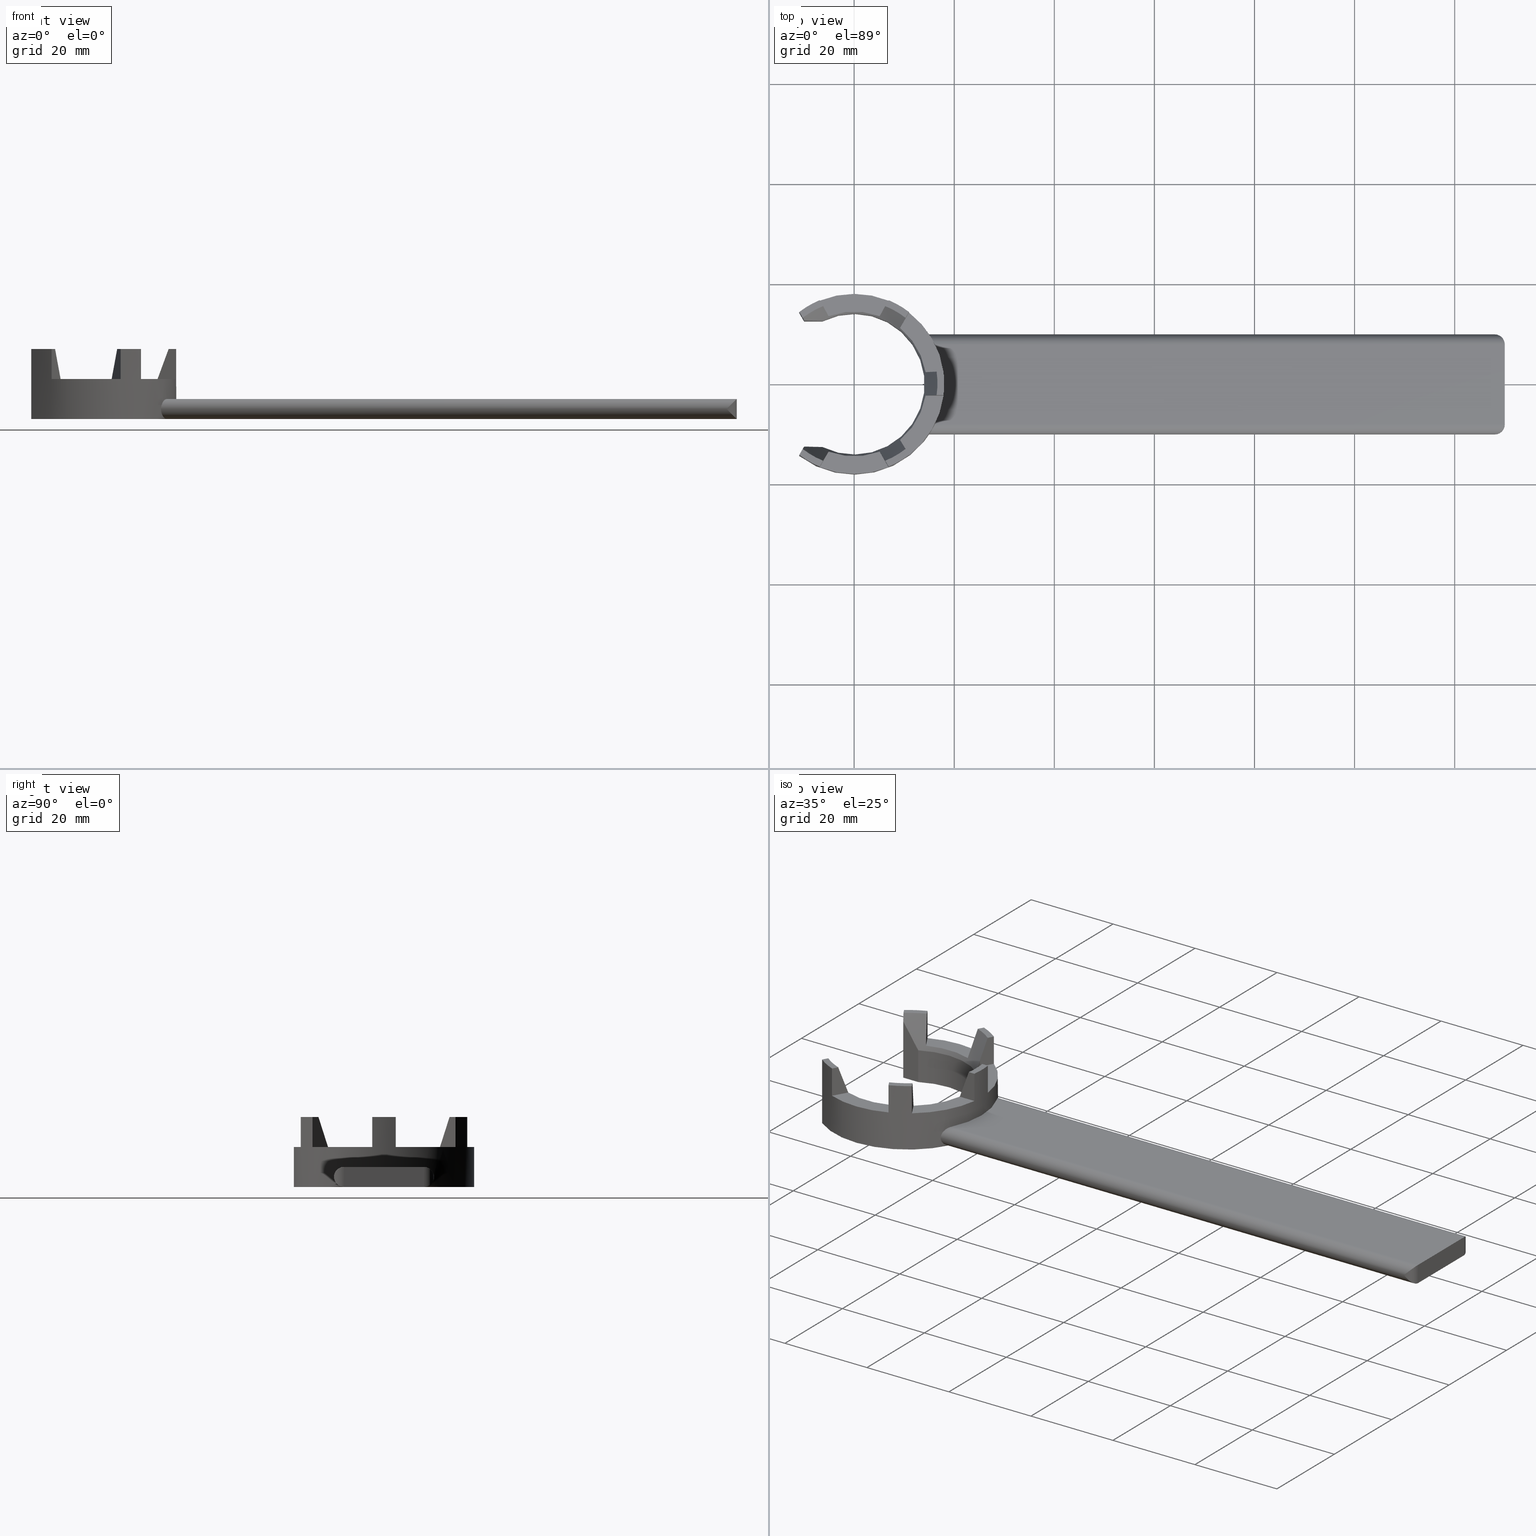
[diagram: canonical four-view strip — front | top / right | iso, engineering-drawing reading convention]
A machine part, canonical four-view strip (front | top / right | iso — engineering-drawing reading convention). The complete STEP part file that produces these views, byte-faithful:
ISO-10303-21;
HEADER;
/* Generated by software containing ST-Developer
 * from STEP Tools, Inc. (www.steptools.com) 
 */

FILE_DESCRIPTION(
/* description */ ('Alibre Inc.'),
/* implementation_level */ '2;1');

FILE_NAME(
/* name */ 'export-CDDEE885-3232-4505-8EFA-BA360E4EB840',
/* time_stamp */ '2019-05-28T17:25:42+02:00',
/* author */ (''),
/* organization */ (''),
/* preprocessor_version */ 'ST-DEVELOPER v17',
/* originating_system */ 'Alibre',
/* authorisation */ '');

FILE_SCHEMA (('AUTOMOTIVE_DESIGN'));
ENDSEC;

DATA;
#10=STYLED_ITEM('NAME_0',(#55),#637);
#11=STYLED_ITEM('NAME_0',(#56),#599);
#12=STYLED_ITEM('NAME_0',(#56),#600);
#13=STYLED_ITEM('NAME_0',(#56),#601);
#14=STYLED_ITEM('NAME_0',(#56),#602);
#15=STYLED_ITEM('NAME_0',(#56),#603);
#16=STYLED_ITEM('NAME_0',(#56),#604);
#17=STYLED_ITEM('NAME_0',(#56),#605);
#18=STYLED_ITEM('NAME_0',(#56),#606);
#19=STYLED_ITEM('NAME_0',(#56),#607);
#20=STYLED_ITEM('NAME_0',(#56),#608);
#21=STYLED_ITEM('NAME_0',(#56),#609);
#22=STYLED_ITEM('NAME_0',(#56),#610);
#23=STYLED_ITEM('NAME_0',(#56),#611);
#24=STYLED_ITEM('NAME_0',(#56),#612);
#25=STYLED_ITEM('NAME_0',(#56),#613);
#26=STYLED_ITEM('NAME_0',(#56),#614);
#27=STYLED_ITEM('NAME_0',(#56),#615);
#28=STYLED_ITEM('NAME_0',(#56),#616);
#29=STYLED_ITEM('NAME_0',(#56),#617);
#30=STYLED_ITEM('NAME_0',(#56),#618);
#31=STYLED_ITEM('NAME_0',(#56),#619);
#32=STYLED_ITEM('NAME_0',(#56),#620);
#33=STYLED_ITEM('NAME_0',(#56),#621);
#34=STYLED_ITEM('NAME_0',(#56),#622);
#35=STYLED_ITEM('NAME_0',(#56),#623);
#36=STYLED_ITEM('NAME_0',(#56),#624);
#37=STYLED_ITEM('NAME_0',(#56),#625);
#38=STYLED_ITEM('NAME_0',(#56),#626);
#39=STYLED_ITEM('NAME_0',(#56),#627);
#40=STYLED_ITEM('NAME_0',(#56),#628);
#41=STYLED_ITEM('NAME_0',(#56),#629);
#42=MECHANICAL_DESIGN_GEOMETRIC_PRESENTATION_REPRESENTATION('NAME_0',(#10,
#11,#12,#13,#14,#15,#16,#17,#18,#19,#20,#21,#22,#23,#24,#25,#26,#27,#28,
#29,#30,#31,#32,#33,#34,#35,#36,#37,#38,#39,#40,#41),#71);
#43=COLOUR_RGB('',0.882352941176471,0.882352941176471,0.882352941176471);
#44=COLOUR_RGB('',0.752941176470588,0.752941176470588,0.752941176470588);
#45=FILL_AREA_STYLE_COLOUR('NAME_0',#43);
#46=FILL_AREA_STYLE_COLOUR('NAME_0',#44);
#47=FILL_AREA_STYLE('NAME_0',(#45));
#48=FILL_AREA_STYLE('NAME_0',(#46));
#49=SURFACE_STYLE_FILL_AREA(#47);
#50=SURFACE_STYLE_FILL_AREA(#48);
#51=SURFACE_SIDE_STYLE('NAME_0',(#49));
#52=SURFACE_SIDE_STYLE('NAME_0',(#50));
#53=SURFACE_STYLE_USAGE(.POSITIVE.,#51);
#54=SURFACE_STYLE_USAGE(.POSITIVE.,#52);
#55=PRESENTATION_STYLE_ASSIGNMENT((#53));
#56=PRESENTATION_STYLE_ASSIGNMENT((#54));
#57=PRODUCT_DEFINITION_CONTEXT('part definition',#64,'design');
#58=SHAPE_DEFINITION_REPRESENTATION(#59,#1131);
#59=PRODUCT_DEFINITION_SHAPE('PRODUCT_VERSION_ID',
'PRODUCT_VERSION_DESCR',#60);
#60=PRODUCT_DEFINITION('PRODUCT_VERSION_ID','PRODUCT_VERSION_DESCR',#61,
#57);
#61=PRODUCT_DEFINITION_FORMATION_WITH_SPECIFIED_SOURCE(
'PRODUCT_VERSION_ID','PRODUCT_VERSION_DESCR',#66,.MADE.);
#62=PRODUCT_RELATED_PRODUCT_CATEGORY('part','part',(#66));
#63=APPLICATION_PROTOCOL_DEFINITION('Draft International Standard',
'automotive_design',1994,#64);
#64=APPLICATION_CONTEXT('automotive_Design');
#65=PRODUCT_CONTEXT('3D Mechanical Parts',#64,'mechanical');
#66=PRODUCT('','4998 Wrench for ERM25 Nut','',(#65));
#67=(
LENGTH_UNIT()
NAMED_UNIT(*)
SI_UNIT(.MILLI.,.METRE.)
);
#68=(
NAMED_UNIT(*)
PLANE_ANGLE_UNIT()
SI_UNIT($,.RADIAN.)
);
#69=(
NAMED_UNIT(*)
SI_UNIT($,.STERADIAN.)
SOLID_ANGLE_UNIT()
);
#70=UNCERTAINTY_MEASURE_WITH_UNIT(LENGTH_MEASURE(1.E-6),#67,
'DISTANCE_ACCURACY_VALUE',
'Maximum model space distance between geometric entities at asserted c
onnectivities');
#71=(
GEOMETRIC_REPRESENTATION_CONTEXT(3)
GLOBAL_UNCERTAINTY_ASSIGNED_CONTEXT((#70))
GLOBAL_UNIT_ASSIGNED_CONTEXT((#69,#68,#67))
REPRESENTATION_CONTEXT('ID1','3D')
);
#72=PLANE('',#1087);
#73=PLANE('',#1088);
#74=PLANE('',#1090);
#75=PLANE('',#1094);
#76=PLANE('',#1095);
#77=PLANE('',#1096);
#78=PLANE('',#1097);
#79=PLANE('',#1099);
#80=PLANE('',#1100);
#81=PLANE('',#1101);
#82=PLANE('',#1103);
#83=PLANE('',#1104);
#84=PLANE('',#1105);
#85=PLANE('',#1107);
#86=PLANE('',#1108);
#87=PLANE('',#1113);
#88=PLANE('',#1117);
#89=PLANE('',#1119);
#90=PLANE('',#1120);
#91=PLANE('',#1121);
#92=PLANE('',#1127);
#93=PLANE('',#1128);
#94=PLANE('',#1129);
#95=PLANE('',#1130);
#96=CIRCLE('',#1077,14.1);
#97=CIRCLE('',#1078,16.65);
#98=CIRCLE('',#1079,14.4661785944028);
#99=CIRCLE('',#1080,16.65);
#100=CIRCLE('',#1081,14.4661785944028);
#101=CIRCLE('',#1082,16.65);
#102=CIRCLE('',#1083,14.4661785944028);
#103=CIRCLE('',#1084,16.65);
#104=CIRCLE('',#1085,14.4661785944028);
#105=CIRCLE('',#1086,16.65);
#106=CIRCLE('',#1089,18.);
#107=CIRCLE('',#1091,18.);
#108=CIRCLE('',#1092,14.1);
#109=CIRCLE('',#1093,18.);
#110=CIRCLE('',#1098,18.);
#111=CIRCLE('',#1102,18.);
#112=CIRCLE('',#1106,18.);
#113=CIRCLE('',#1114,18.);
#114=CIRCLE('',#1118,18.);
#115=CIRCLE('',#1122,18.);
#116=CIRCLE('',#1124,18.);
#117=CIRCLE('',#1125,18.);
#118=CIRCLE('',#1126,18.);
#119=(
BOUNDED_CURVE()
B_SPLINE_CURVE(2,(#838,#839,#840),.UNSPECIFIED.,.F.,.U.)
B_SPLINE_CURVE_WITH_KNOTS((3,3),(1.16521965065809,7.5947729396406),
 .UNSPECIFIED.)
CURVE()
GEOMETRIC_REPRESENTATION_ITEM()
RATIONAL_B_SPLINE_CURVE((1.00358761468134,1.01213205879889,1.0057386203851))
REPRESENTATION_ITEM('')
);
#120=(
BOUNDED_CURVE()
B_SPLINE_CURVE(2,(#845,#846,#847),.UNSPECIFIED.,.F.,.U.)
B_SPLINE_CURVE_WITH_KNOTS((3,3),(2.09105406984365,8.52060735882623),
 .UNSPECIFIED.)
CURVE()
GEOMETRIC_REPRESENTATION_ITEM()
RATIONAL_B_SPLINE_CURVE((1.0057386203851,1.01213205879887,1.00358761468133))
REPRESENTATION_ITEM('')
);
#121=(
BOUNDED_CURVE()
B_SPLINE_CURVE(2,(#849,#850,#851),.UNSPECIFIED.,.F.,.U.)
B_SPLINE_CURVE_WITH_KNOTS((3,3),(1.30238798375389,2.97414450343107),
 .UNSPECIFIED.)
CURVE()
GEOMETRIC_REPRESENTATION_ITEM()
RATIONAL_B_SPLINE_CURVE((1.00044412135791,1.00060787198154,1.00046024894192))
REPRESENTATION_ITEM('')
);
#122=(
BOUNDED_CURVE()
B_SPLINE_CURVE(2,(#855,#856,#857),.UNSPECIFIED.,.F.,.U.)
B_SPLINE_CURVE_WITH_KNOTS((3,3),(1.23235449962897,7.61757274697505),
 .UNSPECIFIED.)
CURVE()
GEOMETRIC_REPRESENTATION_ITEM()
RATIONAL_B_SPLINE_CURVE((1.00120263872427,1.00382930391001,1.00138905098697))
REPRESENTATION_ITEM('')
);
#123=(
BOUNDED_CURVE()
B_SPLINE_CURVE(2,(#861,#862,#863),.UNSPECIFIED.,.F.,.U.)
B_SPLINE_CURVE_WITH_KNOTS((3,3),(1.46726711424918,7.85248536160198),
 .UNSPECIFIED.)
CURVE()
GEOMETRIC_REPRESENTATION_ITEM()
RATIONAL_B_SPLINE_CURVE((1.00138905098491,1.00382930390449,1.00120263872258))
REPRESENTATION_ITEM('')
);
#124=(
BOUNDED_CURVE()
B_SPLINE_CURVE(2,(#867,#868,#869),.UNSPECIFIED.,.F.,.U.)
B_SPLINE_CURVE_WITH_KNOTS((3,3),(1.46726711426512,7.85248536161977),
 .UNSPECIFIED.)
CURVE()
GEOMETRIC_REPRESENTATION_ITEM()
RATIONAL_B_SPLINE_CURVE((1.00138905098606,1.00382930390763,1.00120263872355))
REPRESENTATION_ITEM('')
);
#125=(
BOUNDED_CURVE()
B_SPLINE_CURVE(2,(#873,#874,#875),.UNSPECIFIED.,.F.,.U.)
B_SPLINE_CURVE_WITH_KNOTS((3,3),(1.23235449952249,7.61757274687085),
 .UNSPECIFIED.)
CURVE()
GEOMETRIC_REPRESENTATION_ITEM()
RATIONAL_B_SPLINE_CURVE((1.00120263872895,1.0038293039252,1.00138905099256))
REPRESENTATION_ITEM('')
);
#126=(
BOUNDED_CURVE()
B_SPLINE_CURVE(2,(#879,#880,#881),.UNSPECIFIED.,.F.,.U.)
B_SPLINE_CURVE_WITH_KNOTS((3,3),(1.23235449955722,7.61757274690934),
 .UNSPECIFIED.)
CURVE()
GEOMETRIC_REPRESENTATION_ITEM()
RATIONAL_B_SPLINE_CURVE((1.00120263872799,1.00382930392206,1.00138905099139))
REPRESENTATION_ITEM('')
);
#127=(
BOUNDED_CURVE()
B_SPLINE_CURVE(2,(#885,#886,#887),.UNSPECIFIED.,.F.,.U.)
B_SPLINE_CURVE_WITH_KNOTS((3,3),(1.46726711425112,7.85248536160041),
 .UNSPECIFIED.)
CURVE()
GEOMETRIC_REPRESENTATION_ITEM()
RATIONAL_B_SPLINE_CURVE((1.00138905098433,1.00382930390287,1.00120263872207))
REPRESENTATION_ITEM('')
);
#128=(
BOUNDED_CURVE()
B_SPLINE_CURVE(2,(#891,#892,#893),.UNSPECIFIED.,.F.,.U.)
B_SPLINE_CURVE_WITH_KNOTS((3,3),(1.23235449967473,7.61757274701534),
 .UNSPECIFIED.)
CURVE()
GEOMETRIC_REPRESENTATION_ITEM()
RATIONAL_B_SPLINE_CURVE((1.00120263872169,1.00382930390168,1.00138905098392))
REPRESENTATION_ITEM('')
);
#129=(
BOUNDED_CURVE()
B_SPLINE_CURVE(2,(#897,#898,#899),.UNSPECIFIED.,.F.,.U.)
B_SPLINE_CURVE_WITH_KNOTS((3,3),(1.46726711426749,7.85248536160569),
 .UNSPECIFIED.)
CURVE()
GEOMETRIC_REPRESENTATION_ITEM()
RATIONAL_B_SPLINE_CURVE((1.00138905098298,1.00382930389911,1.00120263872089))
REPRESENTATION_ITEM('')
);
#130=(
BOUNDED_CURVE()
B_SPLINE_CURVE(2,(#903,#904,#905),.UNSPECIFIED.,.F.,.U.)
B_SPLINE_CURVE_WITH_KNOTS((3,3),(1.38897653224902,3.06073305192669),
 .UNSPECIFIED.)
CURVE()
GEOMETRIC_REPRESENTATION_ITEM()
RATIONAL_B_SPLINE_CURVE((1.00046024891826,1.00060787195043,1.00044412133529))
REPRESENTATION_ITEM('')
);
#131=CONICAL_SURFACE('',#1076,16.65,0.349065850398866);
#132=B_SPLINE_CURVE_WITH_KNOTS('',3,(#787,#788,#789,#790,#791,#792,#793,
#794,#795,#796,#797,#798,#799,#800,#801,#802,#803,#804,#805,#806,#807,#808,
#809,#810,#811,#812,#813,#814,#815,#816,#817,#818,#819,#820,#821,#822,#823,
#824,#825,#826,#827,#828,#829,#830,#831,#832,#833,#834,#835,#836),
 .UNSPECIFIED.,.F.,.U.,(4,2,2,2,2,2,2,2,2,2,2,2,2,2,2,2,2,2,2,2,2,2,2,2,
4),(1.49623802577544,1.91003279942263,2.32382757306982,2.73762234671702,
3.15141712036421,3.58591533414772,4.02041354793122,4.45491176171473,4.88940997549823,
5.26623800093833,5.64306602637843,6.01989405181852,6.39672207725862,6.77355010269872,
7.15037812813881,7.52720615357891,7.90403417901901,8.33853239280251,8.77303060658602,
9.20752882036953,9.64202703415303,10.0558218078002,10.4696165814474,10.8834113550946,
11.2972061287418),.UNSPECIFIED.);
#133=B_SPLINE_CURVE_WITH_KNOTS('',3,(#995,#996,#997,#998,#999,#1000,#1001,
#1002,#1003,#1004,#1005,#1006,#1007,#1008,#1009,#1010,#1011,#1012,#1013,
#1014,#1015,#1016,#1017,#1018,#1019,#1020,#1021,#1022,#1023,#1024,#1025,
#1026,#1027,#1028,#1029,#1030,#1031,#1032,#1033,#1034,#1035,#1036,#1037,
#1038,#1039,#1040,#1041,#1042,#1043,#1044,#1045),.UNSPECIFIED.,.F.,.U.,
(4,2,2,2,2,2,2,2,2,2,2,2,3,2,2,2,2,2,2,2,2,2,2,2,4),(-4.90048405148318,
-4.48668927783599,-4.07289450418879,-3.6590997305416,-3.24530495689441,
-2.8108067431109,-2.3763085293274,-1.94181031554389,-1.50731210176039,-1.13048407632029,
-0.753656050880194,-0.376828025440098,0.,0.376828025440097,0.753656050880194,
1.13048407632029,1.50731210176039,1.94181031554389,2.3763085293274,2.8108067431109,
3.24530495689441,3.6590997305416,4.07289450418879,4.48668927783599,4.90048405148318),
 .UNSPECIFIED.);
#134=ELLIPSE('',#1074,2.82842712474619,2.);
#135=ELLIPSE('',#1075,2.82842712474619,2.);
#136=ELLIPSE('',#1111,2.82842712474619,2.);
#137=ELLIPSE('',#1112,2.82842712474619,2.);
#138=VERTEX_POINT('',#779);
#139=VERTEX_POINT('',#780);
#140=VERTEX_POINT('',#782);
#141=VERTEX_POINT('',#784);
#142=VERTEX_POINT('',#786);
#143=VERTEX_POINT('',#841);
#144=VERTEX_POINT('',#842);
#145=VERTEX_POINT('',#844);
#146=VERTEX_POINT('',#848);
#147=VERTEX_POINT('',#852);
#148=VERTEX_POINT('',#854);
#149=VERTEX_POINT('',#858);
#150=VERTEX_POINT('',#860);
#151=VERTEX_POINT('',#864);
#152=VERTEX_POINT('',#866);
#153=VERTEX_POINT('',#870);
#154=VERTEX_POINT('',#872);
#155=VERTEX_POINT('',#876);
#156=VERTEX_POINT('',#878);
#157=VERTEX_POINT('',#882);
#158=VERTEX_POINT('',#884);
#159=VERTEX_POINT('',#888);
#160=VERTEX_POINT('',#890);
#161=VERTEX_POINT('',#894);
#162=VERTEX_POINT('',#896);
#163=VERTEX_POINT('',#900);
#164=VERTEX_POINT('',#902);
#165=VERTEX_POINT('',#908);
#166=VERTEX_POINT('',#911);
#167=VERTEX_POINT('',#915);
#168=VERTEX_POINT('',#917);
#169=VERTEX_POINT('',#921);
#170=VERTEX_POINT('',#923);
#171=VERTEX_POINT('',#925);
#172=VERTEX_POINT('',#927);
#173=VERTEX_POINT('',#929);
#174=VERTEX_POINT('',#931);
#175=VERTEX_POINT('',#933);
#176=VERTEX_POINT('',#940);
#177=VERTEX_POINT('',#942);
#178=VERTEX_POINT('',#946);
#179=VERTEX_POINT('',#948);
#180=VERTEX_POINT('',#952);
#181=VERTEX_POINT('',#954);
#182=VERTEX_POINT('',#960);
#183=VERTEX_POINT('',#964);
#184=VERTEX_POINT('',#966);
#185=VERTEX_POINT('',#970);
#186=VERTEX_POINT('',#974);
#187=VERTEX_POINT('',#978);
#188=VERTEX_POINT('',#980);
#189=VERTEX_POINT('',#984);
#190=VERTEX_POINT('',#988);
#191=VERTEX_POINT('',#994);
#192=VERTEX_POINT('',#1046);
#193=VERTEX_POINT('',#1060);
#194=VECTOR('',#642,1.);
#195=VECTOR('',#647,1.);
#196=VECTOR('',#671,1.);
#197=VECTOR('',#672,1.);
#198=VECTOR('',#673,1.);
#199=VECTOR('',#674,1.);
#200=VECTOR('',#676,0.999999999999999);
#201=VECTOR('',#677,0.999999999999999);
#202=VECTOR('',#683,0.999999999999999);
#203=VECTOR('',#684,1.);
#204=VECTOR('',#687,1.);
#205=VECTOR('',#688,1.);
#206=VECTOR('',#691,1.);
#207=VECTOR('',#693,1.);
#208=VECTOR('',#694,1.);
#209=VECTOR('',#696,1.);
#210=VECTOR('',#697,1.);
#211=VECTOR('',#698,1.);
#212=VECTOR('',#700,1.);
#213=VECTOR('',#701,1.);
#214=VECTOR('',#702,1.);
#215=VECTOR('',#704,0.999999999999999);
#216=VECTOR('',#707,1.);
#217=VECTOR('',#709,1.);
#218=VECTOR('',#711,1.);
#219=VECTOR('',#712,1.);
#220=VECTOR('',#714,1.);
#221=VECTOR('',#717,1.);
#222=VECTOR('',#719,1.);
#223=VECTOR('',#720,1.);
#224=VECTOR('',#722,1.);
#225=VECTOR('',#723,1.);
#226=VECTOR('',#725,1.);
#227=VECTOR('',#728,1.);
#228=VECTOR('',#730,1.);
#229=VECTOR('',#731,1.);
#230=VECTOR('',#733,1.);
#231=VECTOR('',#734,1.);
#232=VECTOR('',#737,1.);
#233=VECTOR('',#742,1.);
#234=VECTOR('',#756,1.);
#235=VECTOR('',#758,1.);
#236=VECTOR('',#759,1.);
#237=VECTOR('',#760,1.);
#238=LINE('',#778,#194);
#239=LINE('',#785,#195);
#240=LINE('',#907,#196);
#241=LINE('',#909,#197);
#242=LINE('',#910,#198);
#243=LINE('',#912,#199);
#244=LINE('',#914,#200);
#245=LINE('',#916,#201);
#246=LINE('',#922,#202);
#247=LINE('',#924,#203);
#248=LINE('',#928,#204);
#249=LINE('',#930,#205);
#250=LINE('',#934,#206);
#251=LINE('',#936,#207);
#252=LINE('',#937,#208);
#253=LINE('',#939,#209);
#254=LINE('',#941,#210);
#255=LINE('',#943,#211);
#256=LINE('',#945,#212);
#257=LINE('',#947,#213);
#258=LINE('',#949,#214);
#259=LINE('',#951,#215);
#260=LINE('',#955,#216);
#261=LINE('',#957,#217);
#262=LINE('',#959,#218);
#263=LINE('',#961,#219);
#264=LINE('',#963,#220);
#265=LINE('',#967,#221);
#266=LINE('',#969,#222);
#267=LINE('',#971,#223);
#268=LINE('',#973,#224);
#269=LINE('',#975,#225);
#270=LINE('',#977,#226);
#271=LINE('',#981,#227);
#272=LINE('',#983,#228);
#273=LINE('',#985,#229);
#274=LINE('',#987,#230);
#275=LINE('',#989,#231);
#276=LINE('',#991,#232);
#277=LINE('',#1047,#233);
#278=LINE('',#1056,#234);
#279=LINE('',#1058,#235);
#280=LINE('',#1059,#236);
#281=LINE('',#1061,#237);
#282=EDGE_CURVE('',#138,#139,#238,.F.);
#283=EDGE_CURVE('',#138,#140,#134,.F.);
#284=EDGE_CURVE('',#140,#141,#135,.F.);
#285=EDGE_CURVE('',#142,#141,#239,.T.);
#286=EDGE_CURVE('',#139,#142,#132,.T.);
#287=EDGE_CURVE('',#143,#144,#119,.T.);
#288=EDGE_CURVE('',#144,#145,#96,.T.);
#289=EDGE_CURVE('',#145,#146,#120,.T.);
#290=EDGE_CURVE('',#147,#146,#121,.T.);
#291=EDGE_CURVE('',#148,#147,#97,.T.);
#292=EDGE_CURVE('',#149,#148,#122,.F.);
#293=EDGE_CURVE('',#149,#150,#98,.F.);
#294=EDGE_CURVE('',#151,#150,#123,.F.);
#295=EDGE_CURVE('',#152,#151,#99,.T.);
#296=EDGE_CURVE('',#152,#153,#124,.F.);
#297=EDGE_CURVE('',#154,#153,#100,.F.);
#298=EDGE_CURVE('',#154,#155,#125,.F.);
#299=EDGE_CURVE('',#156,#155,#101,.T.);
#300=EDGE_CURVE('',#157,#156,#126,.F.);
#301=EDGE_CURVE('',#157,#158,#102,.F.);
#302=EDGE_CURVE('',#159,#158,#127,.F.);
#303=EDGE_CURVE('',#160,#159,#103,.T.);
#304=EDGE_CURVE('',#161,#160,#128,.F.);
#305=EDGE_CURVE('',#161,#162,#104,.F.);
#306=EDGE_CURVE('',#163,#162,#129,.F.);
#307=EDGE_CURVE('',#164,#163,#105,.T.);
#308=EDGE_CURVE('',#143,#164,#130,.T.);
#309=EDGE_CURVE('',#165,#141,#240,.T.);
#310=EDGE_CURVE('',#141,#138,#241,.F.);
#311=EDGE_CURVE('',#166,#138,#242,.T.);
#312=EDGE_CURVE('',#165,#166,#243,.F.);
#313=EDGE_CURVE('',#148,#167,#244,.T.);
#314=EDGE_CURVE('',#147,#168,#245,.T.);
#315=EDGE_CURVE('',#168,#167,#106,.T.);
#316=EDGE_CURVE('',#169,#139,#107,.T.);
#317=EDGE_CURVE('',#169,#170,#246,.F.);
#318=EDGE_CURVE('',#171,#170,#247,.F.);
#319=EDGE_CURVE('',#172,#171,#108,.F.);
#320=EDGE_CURVE('',#173,#172,#248,.F.);
#321=EDGE_CURVE('',#173,#174,#249,.F.);
#322=EDGE_CURVE('',#175,#174,#109,.T.);
#323=EDGE_CURVE('',#175,#166,#250,.T.);
#324=EDGE_CURVE('',#171,#145,#251,.F.);
#325=EDGE_CURVE('',#146,#170,#252,.T.);
#326=EDGE_CURVE('',#160,#176,#253,.F.);
#327=EDGE_CURVE('',#177,#176,#254,.T.);
#328=EDGE_CURVE('',#161,#177,#255,.F.);
#329=EDGE_CURVE('',#178,#162,#256,.F.);
#330=EDGE_CURVE('',#178,#179,#257,.F.);
#331=EDGE_CURVE('',#179,#163,#258,.F.);
#332=EDGE_CURVE('',#149,#180,#259,.T.);
#333=EDGE_CURVE('',#180,#181,#110,.T.);
#334=EDGE_CURVE('',#181,#150,#260,.T.);
#335=EDGE_CURVE('',#180,#167,#261,.T.);
#336=EDGE_CURVE('',#181,#182,#262,.F.);
#337=EDGE_CURVE('',#182,#151,#263,.F.);
#338=EDGE_CURVE('',#183,#153,#264,.F.);
#339=EDGE_CURVE('',#184,#183,#111,.T.);
#340=EDGE_CURVE('',#154,#184,#265,.F.);
#341=EDGE_CURVE('',#184,#185,#266,.T.);
#342=EDGE_CURVE('',#155,#185,#267,.F.);
#343=EDGE_CURVE('',#186,#152,#268,.F.);
#344=EDGE_CURVE('',#183,#186,#269,.F.);
#345=EDGE_CURVE('',#157,#187,#270,.T.);
#346=EDGE_CURVE('',#187,#188,#112,.T.);
#347=EDGE_CURVE('',#188,#158,#271,.T.);
#348=EDGE_CURVE('',#156,#189,#272,.F.);
#349=EDGE_CURVE('',#187,#189,#273,.T.);
#350=EDGE_CURVE('',#188,#190,#274,.F.);
#351=EDGE_CURVE('',#190,#159,#275,.F.);
#352=EDGE_CURVE('',#144,#172,#276,.T.);
#353=EDGE_CURVE('',#166,#191,#136,.T.);
#354=EDGE_CURVE('',#192,#175,#133,.T.);
#355=EDGE_CURVE('',#165,#192,#277,.F.);
#356=EDGE_CURVE('',#191,#165,#137,.T.);
#357=EDGE_CURVE('',#177,#178,#113,.T.);
#358=EDGE_CURVE('',#142,#192,#114,.T.);
#359=EDGE_CURVE('',#168,#169,#278,.F.);
#360=EDGE_CURVE('',#143,#173,#279,.T.);
#361=EDGE_CURVE('',#193,#164,#280,.F.);
#362=EDGE_CURVE('',#193,#174,#281,.T.);
#363=EDGE_CURVE('',#190,#176,#115,.T.);
#364=EDGE_CURVE('',#179,#193,#116,.F.);
#365=EDGE_CURVE('',#185,#189,#117,.F.);
#366=EDGE_CURVE('',#182,#186,#118,.F.);
#367=ORIENTED_EDGE('',*,*,#282,.F.);
#368=ORIENTED_EDGE('',*,*,#283,.T.);
#369=ORIENTED_EDGE('',*,*,#284,.T.);
#370=ORIENTED_EDGE('',*,*,#285,.F.);
#371=ORIENTED_EDGE('',*,*,#286,.F.);
#372=ORIENTED_EDGE('',*,*,#287,.T.);
#373=ORIENTED_EDGE('',*,*,#288,.T.);
#374=ORIENTED_EDGE('',*,*,#289,.T.);
#375=ORIENTED_EDGE('',*,*,#290,.F.);
#376=ORIENTED_EDGE('',*,*,#291,.F.);
#377=ORIENTED_EDGE('',*,*,#292,.F.);
#378=ORIENTED_EDGE('',*,*,#293,.T.);
#379=ORIENTED_EDGE('',*,*,#294,.F.);
#380=ORIENTED_EDGE('',*,*,#295,.F.);
#381=ORIENTED_EDGE('',*,*,#296,.T.);
#382=ORIENTED_EDGE('',*,*,#297,.F.);
#383=ORIENTED_EDGE('',*,*,#298,.T.);
#384=ORIENTED_EDGE('',*,*,#299,.F.);
#385=ORIENTED_EDGE('',*,*,#300,.F.);
#386=ORIENTED_EDGE('',*,*,#301,.T.);
#387=ORIENTED_EDGE('',*,*,#302,.F.);
#388=ORIENTED_EDGE('',*,*,#303,.F.);
#389=ORIENTED_EDGE('',*,*,#304,.F.);
#390=ORIENTED_EDGE('',*,*,#305,.T.);
#391=ORIENTED_EDGE('',*,*,#306,.F.);
#392=ORIENTED_EDGE('',*,*,#307,.F.);
#393=ORIENTED_EDGE('',*,*,#308,.F.);
#394=ORIENTED_EDGE('',*,*,#309,.T.);
#395=ORIENTED_EDGE('',*,*,#310,.T.);
#396=ORIENTED_EDGE('',*,*,#311,.F.);
#397=ORIENTED_EDGE('',*,*,#312,.F.);
#398=ORIENTED_EDGE('',*,*,#313,.F.);
#399=ORIENTED_EDGE('',*,*,#291,.T.);
#400=ORIENTED_EDGE('',*,*,#314,.T.);
#401=ORIENTED_EDGE('',*,*,#315,.T.);
#402=ORIENTED_EDGE('',*,*,#311,.T.);
#403=ORIENTED_EDGE('',*,*,#282,.T.);
#404=ORIENTED_EDGE('',*,*,#316,.F.);
#405=ORIENTED_EDGE('',*,*,#317,.T.);
#406=ORIENTED_EDGE('',*,*,#318,.F.);
#407=ORIENTED_EDGE('',*,*,#319,.F.);
#408=ORIENTED_EDGE('',*,*,#320,.F.);
#409=ORIENTED_EDGE('',*,*,#321,.T.);
#410=ORIENTED_EDGE('',*,*,#322,.F.);
#411=ORIENTED_EDGE('',*,*,#323,.T.);
#412=ORIENTED_EDGE('',*,*,#324,.F.);
#413=ORIENTED_EDGE('',*,*,#318,.T.);
#414=ORIENTED_EDGE('',*,*,#325,.F.);
#415=ORIENTED_EDGE('',*,*,#289,.F.);
#416=ORIENTED_EDGE('',*,*,#304,.T.);
#417=ORIENTED_EDGE('',*,*,#326,.T.);
#418=ORIENTED_EDGE('',*,*,#327,.F.);
#419=ORIENTED_EDGE('',*,*,#328,.F.);
#420=ORIENTED_EDGE('',*,*,#306,.T.);
#421=ORIENTED_EDGE('',*,*,#329,.F.);
#422=ORIENTED_EDGE('',*,*,#330,.T.);
#423=ORIENTED_EDGE('',*,*,#331,.T.);
#424=ORIENTED_EDGE('',*,*,#332,.T.);
#425=ORIENTED_EDGE('',*,*,#333,.T.);
#426=ORIENTED_EDGE('',*,*,#334,.T.);
#427=ORIENTED_EDGE('',*,*,#293,.F.);
#428=ORIENTED_EDGE('',*,*,#292,.T.);
#429=ORIENTED_EDGE('',*,*,#313,.T.);
#430=ORIENTED_EDGE('',*,*,#335,.F.);
#431=ORIENTED_EDGE('',*,*,#332,.F.);
#432=ORIENTED_EDGE('',*,*,#294,.T.);
#433=ORIENTED_EDGE('',*,*,#334,.F.);
#434=ORIENTED_EDGE('',*,*,#336,.T.);
#435=ORIENTED_EDGE('',*,*,#337,.T.);
#436=ORIENTED_EDGE('',*,*,#297,.T.);
#437=ORIENTED_EDGE('',*,*,#338,.F.);
#438=ORIENTED_EDGE('',*,*,#339,.F.);
#439=ORIENTED_EDGE('',*,*,#340,.F.);
#440=ORIENTED_EDGE('',*,*,#340,.T.);
#441=ORIENTED_EDGE('',*,*,#341,.T.);
#442=ORIENTED_EDGE('',*,*,#342,.F.);
#443=ORIENTED_EDGE('',*,*,#298,.F.);
#444=ORIENTED_EDGE('',*,*,#343,.F.);
#445=ORIENTED_EDGE('',*,*,#344,.F.);
#446=ORIENTED_EDGE('',*,*,#338,.T.);
#447=ORIENTED_EDGE('',*,*,#296,.F.);
#448=ORIENTED_EDGE('',*,*,#345,.T.);
#449=ORIENTED_EDGE('',*,*,#346,.T.);
#450=ORIENTED_EDGE('',*,*,#347,.T.);
#451=ORIENTED_EDGE('',*,*,#301,.F.);
#452=ORIENTED_EDGE('',*,*,#300,.T.);
#453=ORIENTED_EDGE('',*,*,#348,.T.);
#454=ORIENTED_EDGE('',*,*,#349,.F.);
#455=ORIENTED_EDGE('',*,*,#345,.F.);
#456=ORIENTED_EDGE('',*,*,#302,.T.);
#457=ORIENTED_EDGE('',*,*,#347,.F.);
#458=ORIENTED_EDGE('',*,*,#350,.T.);
#459=ORIENTED_EDGE('',*,*,#351,.T.);
#460=ORIENTED_EDGE('',*,*,#352,.T.);
#461=ORIENTED_EDGE('',*,*,#319,.T.);
#462=ORIENTED_EDGE('',*,*,#324,.T.);
#463=ORIENTED_EDGE('',*,*,#288,.F.);
#464=ORIENTED_EDGE('',*,*,#353,.F.);
#465=ORIENTED_EDGE('',*,*,#323,.F.);
#466=ORIENTED_EDGE('',*,*,#354,.F.);
#467=ORIENTED_EDGE('',*,*,#355,.F.);
#468=ORIENTED_EDGE('',*,*,#356,.F.);
#469=ORIENTED_EDGE('',*,*,#328,.T.);
#470=ORIENTED_EDGE('',*,*,#357,.T.);
#471=ORIENTED_EDGE('',*,*,#329,.T.);
#472=ORIENTED_EDGE('',*,*,#305,.F.);
#473=ORIENTED_EDGE('',*,*,#353,.T.);
#474=ORIENTED_EDGE('',*,*,#356,.T.);
#475=ORIENTED_EDGE('',*,*,#312,.T.);
#476=ORIENTED_EDGE('',*,*,#310,.F.);
#477=ORIENTED_EDGE('',*,*,#284,.F.);
#478=ORIENTED_EDGE('',*,*,#283,.F.);
#479=ORIENTED_EDGE('',*,*,#309,.F.);
#480=ORIENTED_EDGE('',*,*,#355,.T.);
#481=ORIENTED_EDGE('',*,*,#358,.F.);
#482=ORIENTED_EDGE('',*,*,#285,.T.);
#483=ORIENTED_EDGE('',*,*,#314,.F.);
#484=ORIENTED_EDGE('',*,*,#290,.T.);
#485=ORIENTED_EDGE('',*,*,#325,.T.);
#486=ORIENTED_EDGE('',*,*,#317,.F.);
#487=ORIENTED_EDGE('',*,*,#359,.F.);
#488=ORIENTED_EDGE('',*,*,#360,.F.);
#489=ORIENTED_EDGE('',*,*,#308,.T.);
#490=ORIENTED_EDGE('',*,*,#361,.F.);
#491=ORIENTED_EDGE('',*,*,#362,.T.);
#492=ORIENTED_EDGE('',*,*,#321,.F.);
#493=ORIENTED_EDGE('',*,*,#326,.F.);
#494=ORIENTED_EDGE('',*,*,#303,.T.);
#495=ORIENTED_EDGE('',*,*,#351,.F.);
#496=ORIENTED_EDGE('',*,*,#363,.T.);
#497=ORIENTED_EDGE('',*,*,#364,.F.);
#498=ORIENTED_EDGE('',*,*,#330,.F.);
#499=ORIENTED_EDGE('',*,*,#357,.F.);
#500=ORIENTED_EDGE('',*,*,#327,.T.);
#501=ORIENTED_EDGE('',*,*,#363,.F.);
#502=ORIENTED_EDGE('',*,*,#350,.F.);
#503=ORIENTED_EDGE('',*,*,#346,.F.);
#504=ORIENTED_EDGE('',*,*,#349,.T.);
#505=ORIENTED_EDGE('',*,*,#365,.F.);
#506=ORIENTED_EDGE('',*,*,#341,.F.);
#507=ORIENTED_EDGE('',*,*,#339,.T.);
#508=ORIENTED_EDGE('',*,*,#344,.T.);
#509=ORIENTED_EDGE('',*,*,#366,.F.);
#510=ORIENTED_EDGE('',*,*,#336,.F.);
#511=ORIENTED_EDGE('',*,*,#333,.F.);
#512=ORIENTED_EDGE('',*,*,#335,.T.);
#513=ORIENTED_EDGE('',*,*,#315,.F.);
#514=ORIENTED_EDGE('',*,*,#359,.T.);
#515=ORIENTED_EDGE('',*,*,#316,.T.);
#516=ORIENTED_EDGE('',*,*,#286,.T.);
#517=ORIENTED_EDGE('',*,*,#358,.T.);
#518=ORIENTED_EDGE('',*,*,#354,.T.);
#519=ORIENTED_EDGE('',*,*,#322,.T.);
#520=ORIENTED_EDGE('',*,*,#362,.F.);
#521=ORIENTED_EDGE('',*,*,#299,.T.);
#522=ORIENTED_EDGE('',*,*,#342,.T.);
#523=ORIENTED_EDGE('',*,*,#365,.T.);
#524=ORIENTED_EDGE('',*,*,#348,.F.);
#525=ORIENTED_EDGE('',*,*,#337,.F.);
#526=ORIENTED_EDGE('',*,*,#366,.T.);
#527=ORIENTED_EDGE('',*,*,#343,.T.);
#528=ORIENTED_EDGE('',*,*,#295,.T.);
#529=ORIENTED_EDGE('',*,*,#331,.F.);
#530=ORIENTED_EDGE('',*,*,#364,.T.);
#531=ORIENTED_EDGE('',*,*,#361,.T.);
#532=ORIENTED_EDGE('',*,*,#307,.T.);
#533=ORIENTED_EDGE('',*,*,#352,.F.);
#534=ORIENTED_EDGE('',*,*,#287,.F.);
#535=ORIENTED_EDGE('',*,*,#360,.T.);
#536=ORIENTED_EDGE('',*,*,#320,.T.);
#537=EDGE_LOOP('',(#367,#368,#369,#370,#371));
#538=EDGE_LOOP('',(#372,#373,#374,#375,#376,#377,#378,#379,#380,#381,#382,
#383,#384,#385,#386,#387,#388,#389,#390,#391,#392,#393));
#539=EDGE_LOOP('',(#394,#395,#396,#397));
#540=EDGE_LOOP('',(#398,#399,#400,#401));
#541=EDGE_LOOP('',(#402,#403,#404,#405,#406,#407,#408,#409,#410,#411));
#542=EDGE_LOOP('',(#412,#413,#414,#415));
#543=EDGE_LOOP('',(#416,#417,#418,#419));
#544=EDGE_LOOP('',(#420,#421,#422,#423));
#545=EDGE_LOOP('',(#424,#425,#426,#427));
#546=EDGE_LOOP('',(#428,#429,#430,#431));
#547=EDGE_LOOP('',(#432,#433,#434,#435));
#548=EDGE_LOOP('',(#436,#437,#438,#439));
#549=EDGE_LOOP('',(#440,#441,#442,#443));
#550=EDGE_LOOP('',(#444,#445,#446,#447));
#551=EDGE_LOOP('',(#448,#449,#450,#451));
#552=EDGE_LOOP('',(#452,#453,#454,#455));
#553=EDGE_LOOP('',(#456,#457,#458,#459));
#554=EDGE_LOOP('',(#460,#461,#462,#463));
#555=EDGE_LOOP('',(#464,#465,#466,#467,#468));
#556=EDGE_LOOP('',(#469,#470,#471,#472));
#557=EDGE_LOOP('',(#473,#474,#475));
#558=EDGE_LOOP('',(#476,#477,#478));
#559=EDGE_LOOP('',(#479,#480,#481,#482));
#560=EDGE_LOOP('',(#483,#484,#485,#486,#487));
#561=EDGE_LOOP('',(#488,#489,#490,#491,#492));
#562=EDGE_LOOP('',(#493,#494,#495,#496));
#563=EDGE_LOOP('',(#497,#498,#499,#500,#501,#502,#503,#504,#505,#506,#507,
#508,#509,#510,#511,#512,#513,#514,#515,#516,#517,#518,#519,#520));
#564=EDGE_LOOP('',(#521,#522,#523,#524));
#565=EDGE_LOOP('',(#525,#526,#527,#528));
#566=EDGE_LOOP('',(#529,#530,#531,#532));
#567=EDGE_LOOP('',(#533,#534,#535,#536));
#568=FACE_BOUND('',#537,.T.);
#569=FACE_BOUND('',#538,.T.);
#570=FACE_BOUND('',#539,.T.);
#571=FACE_BOUND('',#540,.T.);
#572=FACE_BOUND('',#541,.T.);
#573=FACE_BOUND('',#542,.T.);
#574=FACE_BOUND('',#543,.T.);
#575=FACE_BOUND('',#544,.T.);
#576=FACE_BOUND('',#545,.T.);
#577=FACE_BOUND('',#546,.T.);
#578=FACE_BOUND('',#547,.T.);
#579=FACE_BOUND('',#548,.T.);
#580=FACE_BOUND('',#549,.T.);
#581=FACE_BOUND('',#550,.T.);
#582=FACE_BOUND('',#551,.T.);
#583=FACE_BOUND('',#552,.T.);
#584=FACE_BOUND('',#553,.T.);
#585=FACE_BOUND('',#554,.T.);
#586=FACE_BOUND('',#555,.T.);
#587=FACE_BOUND('',#556,.T.);
#588=FACE_BOUND('',#557,.T.);
#589=FACE_BOUND('',#558,.T.);
#590=FACE_BOUND('',#559,.T.);
#591=FACE_BOUND('',#560,.T.);
#592=FACE_BOUND('',#561,.T.);
#593=FACE_BOUND('',#562,.T.);
#594=FACE_BOUND('',#563,.T.);
#595=FACE_BOUND('',#564,.T.);
#596=FACE_BOUND('',#565,.T.);
#597=FACE_BOUND('',#566,.T.);
#598=FACE_BOUND('',#567,.T.);
#599=ADVANCED_FACE('',(#568),#630,.T.);
#600=ADVANCED_FACE('',(#569),#131,.F.);
#601=ADVANCED_FACE('',(#570),#72,.T.);
#602=ADVANCED_FACE('',(#571),#73,.T.);
#603=ADVANCED_FACE('',(#572),#74,.F.);
#604=ADVANCED_FACE('',(#573),#75,.F.);
#605=ADVANCED_FACE('',(#574),#76,.F.);
#606=ADVANCED_FACE('',(#575),#77,.F.);
#607=ADVANCED_FACE('',(#576),#78,.T.);
#608=ADVANCED_FACE('',(#577),#79,.F.);
#609=ADVANCED_FACE('',(#578),#80,.F.);
#610=ADVANCED_FACE('',(#579),#81,.F.);
#611=ADVANCED_FACE('',(#580),#82,.T.);
#612=ADVANCED_FACE('',(#581),#83,.T.);
#613=ADVANCED_FACE('',(#582),#84,.T.);
#614=ADVANCED_FACE('',(#583),#85,.F.);
#615=ADVANCED_FACE('',(#584),#86,.F.);
#616=ADVANCED_FACE('',(#585),#631,.F.);
#617=ADVANCED_FACE('',(#586),#632,.T.);
#618=ADVANCED_FACE('',(#587),#87,.T.);
#619=ADVANCED_FACE('',(#588),#633,.T.);
#620=ADVANCED_FACE('',(#589),#634,.T.);
#621=ADVANCED_FACE('',(#590),#88,.T.);
#622=ADVANCED_FACE('',(#591),#89,.T.);
#623=ADVANCED_FACE('',(#592),#90,.T.);
#624=ADVANCED_FACE('',(#593),#91,.T.);
#625=ADVANCED_FACE('',(#594),#635,.T.);
#626=ADVANCED_FACE('',(#595),#92,.T.);
#627=ADVANCED_FACE('',(#596),#93,.T.);
#628=ADVANCED_FACE('',(#597),#94,.T.);
#629=ADVANCED_FACE('',(#598),#95,.F.);
#630=CYLINDRICAL_SURFACE('',#1073,2.);
#631=CYLINDRICAL_SURFACE('',#1109,14.1);
#632=CYLINDRICAL_SURFACE('',#1110,2.);
#633=CYLINDRICAL_SURFACE('',#1115,2.);
#634=CYLINDRICAL_SURFACE('',#1116,2.);
#635=CYLINDRICAL_SURFACE('',#1123,18.);
#636=CLOSED_SHELL('',(#599,#600,#601,#602,#603,#604,#605,#606,#607,#608,
#609,#610,#611,#612,#613,#614,#615,#616,#617,#618,#619,#620,#621,#622,#623,
#624,#625,#626,#627,#628,#629));
#637=MANIFOLD_SOLID_BREP('',#636);
#638=DIRECTION('',(1.,0.,0.));
#639=DIRECTION('',(0.,0.,1.));
#640=DIRECTION('',(1.,1.20641408255495E-16,0.));
#641=DIRECTION('',(2.4128281651099E-16,-2.,0.));
#642=DIRECTION('',(1.,1.20641408255495E-16,0.));
#643=DIRECTION('',(0.707106781186547,0.,0.707106781186547));
#644=DIRECTION('',(2.,2.4128281651099E-16,-2.));
#645=DIRECTION('',(0.707106781186547,0.,-0.707106781186547));
#646=DIRECTION('',(-2.,-2.4128281651099E-16,-2.));
#647=DIRECTION('',(1.,1.20641408255495E-16,0.));
#648=DIRECTION('',(0.,0.,1.));
#649=DIRECTION('',(16.65,0.,0.));
#650=DIRECTION('',(0.,0.,-1.));
#651=DIRECTION('',(14.1,0.,0.));
#652=DIRECTION('',(0.,0.,-1.));
#653=DIRECTION('',(16.65,0.,0.));
#654=DIRECTION('',(0.,0.,-1.));
#655=DIRECTION('',(14.4661785944028,0.,0.));
#656=DIRECTION('',(0.,0.,-1.));
#657=DIRECTION('',(16.65,0.,0.));
#658=DIRECTION('',(0.,0.,1.));
#659=DIRECTION('',(14.4661785944028,0.,0.));
#660=DIRECTION('',(0.,0.,-1.));
#661=DIRECTION('',(16.65,0.,0.));
#662=DIRECTION('',(0.,0.,-1.));
#663=DIRECTION('',(14.4661785944028,0.,0.));
#664=DIRECTION('',(0.,0.,-1.));
#665=DIRECTION('',(16.65,0.,0.));
#666=DIRECTION('',(0.,0.,-1.));
#667=DIRECTION('',(14.4661785944028,0.,0.));
#668=DIRECTION('',(0.,0.,-1.));
#669=DIRECTION('',(16.65,0.,0.));
#670=DIRECTION('',(1.,0.,0.));
#671=DIRECTION('',(0.,-1.,0.));
#672=DIRECTION('',(0.,0.,1.));
#673=DIRECTION('',(0.,-1.,0.));
#674=DIRECTION('',(0.,0.,1.));
#675=DIRECTION('',(0.,0.,1.));
#676=DIRECTION('',(-0.5,-0.866025403784438,0.));
#677=DIRECTION('',(-0.5,-0.866025403784438,0.));
#678=DIRECTION('',(0.,0.,1.));
#679=DIRECTION('',(-18.,0.,0.));
#680=DIRECTION('',(0.,0.,1.));
#681=DIRECTION('',(0.,0.,1.));
#682=DIRECTION('',(-18.,0.,0.));
#683=DIRECTION('',(-0.5,-0.866025403784438,0.));
#684=DIRECTION('',(1.,1.34949929705898E-16,0.));
#685=DIRECTION('',(0.,0.,1.));
#686=DIRECTION('',(14.1,0.,0.));
#687=DIRECTION('',(-1.,1.34949929705898E-16,0.));
#688=DIRECTION('',(0.5,-0.866025403784439,0.));
#689=DIRECTION('',(0.,0.,1.));
#690=DIRECTION('',(-18.,0.,0.));
#691=DIRECTION('',(1.,-1.20641408255495E-16,0.));
#692=DIRECTION('',(1.34949929705898E-16,-1.,0.));
#693=DIRECTION('',(0.,0.,-1.));
#694=DIRECTION('',(0.,0.,-1.));
#695=DIRECTION('',(0.866025403784438,-0.500000000000001,0.));
#696=DIRECTION('',(-0.500000000000001,-0.866025403784438,0.));
#697=DIRECTION('',(0.,0.,1.));
#698=DIRECTION('',(-0.500000000000001,-0.866025403784438,0.));
#699=DIRECTION('',(-0.866025403784439,-0.5,0.));
#700=DIRECTION('',(-0.5,0.866025403784439,0.));
#701=DIRECTION('',(0.,0.,-1.));
#702=DIRECTION('',(-0.5,0.866025403784439,0.));
#703=DIRECTION('',(0.,0.,1.));
#704=DIRECTION('',(-0.5,-0.866025403784438,0.));
#705=DIRECTION('',(0.,0.,1.));
#706=DIRECTION('',(-18.,0.,0.));
#707=DIRECTION('',(-0.5,0.866025403784439,0.));
#708=DIRECTION('',(-0.866025403784438,0.5,0.));
#709=DIRECTION('',(0.,0.,1.));
#710=DIRECTION('',(0.866025403784439,0.5,0.));
#711=DIRECTION('',(0.,0.,-1.));
#712=DIRECTION('',(0.5,-0.866025403784439,0.));
#713=DIRECTION('',(0.,0.,-1.));
#714=DIRECTION('',(0.5,-0.866025403784439,0.));
#715=DIRECTION('',(0.,0.,-1.));
#716=DIRECTION('',(-18.,0.,0.));
#717=DIRECTION('',(-1.,2.04631512212578E-15,0.));
#718=DIRECTION('',(-2.04631512212578E-15,-1.,0.));
#719=DIRECTION('',(0.,0.,1.));
#720=DIRECTION('',(-1.,2.04631512212578E-15,0.));
#721=DIRECTION('',(0.866025403784439,0.5,0.));
#722=DIRECTION('',(0.5,-0.866025403784439,0.));
#723=DIRECTION('',(0.,0.,-1.));
#724=DIRECTION('',(0.,0.,1.));
#725=DIRECTION('',(1.,-2.04631512212578E-15,0.));
#726=DIRECTION('',(0.,0.,1.));
#727=DIRECTION('',(-18.,0.,0.));
#728=DIRECTION('',(-0.500000000000001,-0.866025403784438,0.));
#729=DIRECTION('',(-2.04631512212578E-15,-1.,0.));
#730=DIRECTION('',(-1.,2.04631512212578E-15,0.));
#731=DIRECTION('',(0.,0.,1.));
#732=DIRECTION('',(-0.866025403784438,0.500000000000001,0.));
#733=DIRECTION('',(0.,0.,-1.));
#734=DIRECTION('',(0.500000000000001,0.866025403784438,0.));
#735=DIRECTION('',(0.,0.,-1.));
#736=DIRECTION('',(14.1,0.,0.));
#737=DIRECTION('',(0.,0.,-1.));
#738=DIRECTION('',(1.,-1.20641408255495E-16,0.));
#739=DIRECTION('',(-2.4128281651099E-16,-2.,0.));
#740=DIRECTION('',(0.707106781186548,0.,0.707106781186548));
#741=DIRECTION('',(2.,-2.4128281651099E-16,-2.));
#742=DIRECTION('',(1.,-1.20641408255495E-16,0.));
#743=DIRECTION('',(0.707106781186548,0.,-0.707106781186548));
#744=DIRECTION('',(-2.,2.4128281651099E-16,-2.));
#745=DIRECTION('',(0.,0.,1.));
#746=DIRECTION('',(0.,0.,1.));
#747=DIRECTION('',(-18.,0.,0.));
#748=DIRECTION('',(0.,0.,1.));
#749=DIRECTION('',(-2.,0.,0.));
#750=DIRECTION('',(0.,0.,1.));
#751=DIRECTION('',(-2.,0.,0.));
#752=DIRECTION('',(0.,0.,1.));
#753=DIRECTION('',(0.,0.,1.));
#754=DIRECTION('',(-18.,0.,0.));
#755=DIRECTION('',(-0.866025403784438,0.5,0.));
#756=DIRECTION('',(0.,0.,1.));
#757=DIRECTION('',(-0.866025403784439,-0.5,0.));
#758=DIRECTION('',(0.,0.,-1.));
#759=DIRECTION('',(-0.5,0.866025403784439,0.));
#760=DIRECTION('',(0.,0.,-1.));
#761=DIRECTION('',(0.,0.,1.));
#762=DIRECTION('',(0.,0.,1.));
#763=DIRECTION('',(-18.,0.,0.));
#764=DIRECTION('',(0.,0.,1.));
#765=DIRECTION('',(-18.,0.,0.));
#766=DIRECTION('',(0.,0.,-1.));
#767=DIRECTION('',(-18.,0.,0.));
#768=DIRECTION('',(0.,0.,-1.));
#769=DIRECTION('',(-18.,0.,0.));
#770=DIRECTION('',(0.,0.,-1.));
#771=DIRECTION('',(-18.,0.,0.));
#772=DIRECTION('',(0.,0.,1.));
#773=DIRECTION('',(0.,0.,1.));
#774=DIRECTION('',(0.,0.,1.));
#775=DIRECTION('',(1.34949929705898E-16,1.,0.));
#776=CARTESIAN_POINT('',(0.,0.,0.));
#777=CARTESIAN_POINT('',(130.,-8.,2.));
#778=CARTESIAN_POINT('',(130.,-8.,0.));
#779=CARTESIAN_POINT('',(130.,-8.,0.));
#780=CARTESIAN_POINT('',(16.1245154965971,-8.00000000000002,0.));
#781=CARTESIAN_POINT('',(128.,-8.,2.));
#782=CARTESIAN_POINT('',(128.,-10.,2.));
#783=CARTESIAN_POINT('',(128.,-8.,2.));
#784=CARTESIAN_POINT('',(130.,-8.,4.));
#785=CARTESIAN_POINT('',(130.,-8.,4.));
#786=CARTESIAN_POINT('',(16.1245154965971,-8.00000000000002,4.));
#787=CARTESIAN_POINT('',(16.760624485494,-6.56364737446034,0.608277637204431));
#788=CARTESIAN_POINT('',(16.7243595686283,-6.65625177852194,0.512703561177352));
#789=CARTESIAN_POINT('',(16.6825997733629,-6.76060484163537,0.424386565271752));
#790=CARTESIAN_POINT('',(16.5893352761082,-6.98633438365316,0.270508724517628));
#791=CARTESIAN_POINT('',(16.537818913221,-7.10769571233124,0.204932723769856));
#792=CARTESIAN_POINT('',(16.4276434053178,-7.35875838412929,0.100715240793176));
#793=CARTESIAN_POINT('',(16.3688930790613,-7.48864099601117,0.061986669649936));
#794=CARTESIAN_POINT('',(16.2479820182196,-7.74748249024262,0.0116291576350604));
#795=CARTESIAN_POINT('',(16.1858184260263,-7.87643999555399,8.05364689998805E-17));
#796=CARTESIAN_POINT('',(16.0601453908514,-8.12974209595179,-8.45659591503545E-17));
#797=CARTESIAN_POINT('',(15.9918359970216,-8.26339333019216,0.0128067052498528));
#798=CARTESIAN_POINT('',(15.8519396751242,-8.52868667622917,0.0664013768555435));
#799=CARTESIAN_POINT('',(15.7803532997598,-8.66033388598174,0.107165548294848));
#800=CARTESIAN_POINT('',(15.6391003786182,-8.91288239767728,0.215200630233765));
#801=CARTESIAN_POINT('',(15.5693625892678,-9.03393070825491,0.28252660567054));
#802=CARTESIAN_POINT('',(15.4370358562116,-9.25823306315736,0.439366433746084));
#803=CARTESIAN_POINT('',(15.3744655035193,-9.36148500589547,0.528898976178953));
#804=CARTESIAN_POINT('',(15.2688881951538,-9.5325637474772,0.709797883394681));
#805=CARTESIAN_POINT('',(15.2211113588749,-9.60855085149377,0.804986372243934));
#806=CARTESIAN_POINT('',(15.1345596257653,-9.74431041169601,1.01365594278057));
#807=CARTESIAN_POINT('',(15.0958041343973,-9.80408388922264,1.12714440844629));
#808=CARTESIAN_POINT('',(15.0323146786992,-9.90115543396105,1.36580497596895));
#809=CARTESIAN_POINT('',(15.0075438685197,-9.93853649682271,1.4912240707014));
#810=CARTESIAN_POINT('',(14.9746917121144,-9.98796720019754,1.74551403631132));
#811=CARTESIAN_POINT('',(14.9666295470958,-10.,1.87439065818663));
#812=CARTESIAN_POINT('',(14.9666295470958,-10.,2.12560934181337));
#813=CARTESIAN_POINT('',(14.9746917121144,-9.98796720019754,2.25448596368868));
#814=CARTESIAN_POINT('',(15.0075438685197,-9.93853649682271,2.5087759292986));
#815=CARTESIAN_POINT('',(15.0323146786992,-9.90115543396105,2.63419502403105));
#816=CARTESIAN_POINT('',(15.0958041343973,-9.80408388922264,2.87285559155371));
#817=CARTESIAN_POINT('',(15.1345596257653,-9.74431041169601,2.98634405721943));
#818=CARTESIAN_POINT('',(15.2211113588749,-9.60855085149377,3.19501362775607));
#819=CARTESIAN_POINT('',(15.2688881951538,-9.5325637474772,3.29020211660532));
#820=CARTESIAN_POINT('',(15.3744655035193,-9.36148500589547,3.47110102382105));
#821=CARTESIAN_POINT('',(15.4370358562116,-9.25823306315736,3.56063356625392));
#822=CARTESIAN_POINT('',(15.5693625892678,-9.03393070825491,3.71747339432946));
#823=CARTESIAN_POINT('',(15.6391003786182,-8.91288239767728,3.78479936976623));
#824=CARTESIAN_POINT('',(15.7803532997598,-8.66033388598174,3.89283445170515));
#825=CARTESIAN_POINT('',(15.8519396751242,-8.52868667622916,3.93359862314446));
#826=CARTESIAN_POINT('',(15.9918359970216,-8.26339333019216,3.98719329475015));
#827=CARTESIAN_POINT('',(16.0601453908514,-8.12974209595179,4.));
#828=CARTESIAN_POINT('',(16.1858184260263,-7.87643999555399,4.));
#829=CARTESIAN_POINT('',(16.2479820182196,-7.74748249024262,3.98837084236494));
#830=CARTESIAN_POINT('',(16.3688930790613,-7.48864099601117,3.93801333035006));
#831=CARTESIAN_POINT('',(16.4276434053178,-7.35875838412929,3.89928475920682));
#832=CARTESIAN_POINT('',(16.537818913221,-7.10769571233123,3.79506727623014));
#833=CARTESIAN_POINT('',(16.5893352761082,-6.98633438365316,3.72949127548237));
#834=CARTESIAN_POINT('',(16.6825997733629,-6.76060484163537,3.57561343472825));
#835=CARTESIAN_POINT('',(16.7243595686283,-6.65625177852194,3.48729643882265));
#836=CARTESIAN_POINT('',(16.760624485494,-6.56364737446034,3.39172236279557));
#837=CARTESIAN_POINT('',(0.,0.,14.));
#838=CARTESIAN_POINT('',(-9.98815965698051,12.6,12.4302584672532));
#839=CARTESIAN_POINT('',(-8.03836091683056,12.6,9.10244082716159));
#840=CARTESIAN_POINT('',(-6.32850693291864,12.6,6.99393258039064));
#841=CARTESIAN_POINT('',(-9.98815965698051,12.6,12.4302584672532));
#842=CARTESIAN_POINT('',(-6.3285069329187,12.6,6.99393258039072));
#843=CARTESIAN_POINT('',(0.,0.,6.99393258039072));
#844=CARTESIAN_POINT('',(-6.32850693291869,-12.6,6.99393258039072));
#845=CARTESIAN_POINT('',(-6.32850693291863,-12.6,6.99393258039064));
#846=CARTESIAN_POINT('',(-8.03836091683059,-12.6,9.10244082716164));
#847=CARTESIAN_POINT('',(-9.98815965698057,-12.6,12.4302584672533));
#848=CARTESIAN_POINT('',(-9.98815965698057,-12.6,12.4302584672533));
#849=CARTESIAN_POINT('',(-10.2768221525493,-13.0999781085646,14.));
#850=CARTESIAN_POINT('',(-10.1299713363664,-12.8456250338028,13.2011392688766));
#851=CARTESIAN_POINT('',(-9.9881596569806,-12.6,12.4302584672533));
#852=CARTESIAN_POINT('',(-10.2768221525493,-13.0999781085646,14.));
#853=CARTESIAN_POINT('',(0.,0.,14.));
#854=CARTESIAN_POINT('',(-6.20650275476238,-15.4499781085646,14.));
#855=CARTESIAN_POINT('',(-6.20650275476238,-15.4499781085646,14.));
#856=CARTESIAN_POINT('',(-5.6154143624127,-14.4261829812508,10.7845101747143));
#857=CARTESIAN_POINT('',(-5.10185338651488,-13.5366692782111,8.));
#858=CARTESIAN_POINT('',(-5.10185338651488,-13.5366692782111,8.));
#859=CARTESIAN_POINT('',(0.,0.,8.));
#860=CARTESIAN_POINT('',(5.10185338651486,-13.5366692782111,8.00000000000001));
#861=CARTESIAN_POINT('',(5.10185338651486,-13.5366692782111,8.00000000000001));
#862=CARTESIAN_POINT('',(5.61541436243446,-14.4261829812885,10.7845101748325));
#863=CARTESIAN_POINT('',(6.2065027547624,-15.4499781085647,14.));
#864=CARTESIAN_POINT('',(6.2065027547624,-15.4499781085647,14.));
#865=CARTESIAN_POINT('',(0.,0.,14.));
#866=CARTESIAN_POINT('',(10.2768221525493,-13.0999781085647,14.));
#867=CARTESIAN_POINT('',(9.17217278430173,-11.1866692782111,8.00000000000001));
#868=CARTESIAN_POINT('',(9.68573376021557,-12.0761829812785,10.7845101748012));
#869=CARTESIAN_POINT('',(10.2768221525493,-13.0999781085647,14.));
#870=CARTESIAN_POINT('',(9.17217278430173,-11.1866692782111,8.00000000000001));
#871=CARTESIAN_POINT('',(0.,0.,8.));
#872=CARTESIAN_POINT('',(14.2740261708167,-2.35000000000002,7.99999999999998));
#873=CARTESIAN_POINT('',(16.4833249073116,-2.35000000000003,14.));
#874=CARTESIAN_POINT('',(15.3011481225408,-2.35000000000002,10.7845101745202));
#875=CARTESIAN_POINT('',(14.2740261708167,-2.35000000000002,7.99999999999998));
#876=CARTESIAN_POINT('',(16.4833249073116,-2.35000000000003,14.));
#877=CARTESIAN_POINT('',(0.,0.,14.));
#878=CARTESIAN_POINT('',(16.4833249073116,2.34999999999997,14.));
#879=CARTESIAN_POINT('',(16.4833249073116,2.34999999999997,14.));
#880=CARTESIAN_POINT('',(15.3011481225654,2.34999999999998,10.7845101745871));
#881=CARTESIAN_POINT('',(14.2740261708166,2.34999999999998,7.99999999999998));
#882=CARTESIAN_POINT('',(14.2740261708167,2.34999999999998,7.99999999999998));
#883=CARTESIAN_POINT('',(0.,0.,8.));
#884=CARTESIAN_POINT('',(9.17217278430175,11.186669278211,8.00000000000001));
#885=CARTESIAN_POINT('',(9.17217278430175,11.186669278211,8.00000000000001));
#886=CARTESIAN_POINT('',(9.68573376022138,12.0761829812885,10.7845101748326));
#887=CARTESIAN_POINT('',(10.2768221525493,13.0999781085646,14.));
#888=CARTESIAN_POINT('',(10.2768221525493,13.0999781085646,14.));
#889=CARTESIAN_POINT('',(0.,0.,14.));
#890=CARTESIAN_POINT('',(6.20650275476241,15.4499781085647,14.));
#891=CARTESIAN_POINT('',(6.20650275476241,15.4499781085647,14.));
#892=CARTESIAN_POINT('',(5.61541436242742,14.4261829812763,10.7845101747942));
#893=CARTESIAN_POINT('',(5.10185338651488,13.5366692782111,8.00000000000001));
#894=CARTESIAN_POINT('',(5.10185338651488,13.5366692782111,8.00000000000001));
#895=CARTESIAN_POINT('',(0.,0.,8.));
#896=CARTESIAN_POINT('',(-5.10185338651483,13.5366692782111,8.00000000000001));
#897=CARTESIAN_POINT('',(-5.10185338651483,13.5366692782111,8.00000000000001));
#898=CARTESIAN_POINT('',(-5.61541436243105,14.4261829812826,10.7845101748142));
#899=CARTESIAN_POINT('',(-6.20650275476236,15.4499781085647,14.));
#900=CARTESIAN_POINT('',(-6.20650275476236,15.4499781085647,14.));
#901=CARTESIAN_POINT('',(0.,0.,14.));
#902=CARTESIAN_POINT('',(-10.2768221525492,13.0999781085647,14.));
#903=CARTESIAN_POINT('',(-9.98815965698051,12.6,12.4302584672532));
#904=CARTESIAN_POINT('',(-10.1299713363989,12.8456250338593,13.2011392690537));
#905=CARTESIAN_POINT('',(-10.2768221525492,13.0999781085647,14.));
#906=CARTESIAN_POINT('',(130.,10.,4.));
#907=CARTESIAN_POINT('',(130.,5.,4.));
#908=CARTESIAN_POINT('',(130.,8.,4.));
#909=CARTESIAN_POINT('',(130.,-8.,146.154692138335));
#910=CARTESIAN_POINT('',(130.,5.,0.));
#911=CARTESIAN_POINT('',(130.,8.,0.));
#912=CARTESIAN_POINT('',(130.,8.,146.154692138335));
#913=CARTESIAN_POINT('',(0.,0.,14.));
#914=CARTESIAN_POINT('',(1.01757984944672,-2.9375,14.));
#915=CARTESIAN_POINT('',(-6.8878092576815,-16.6300355871476,14.));
#916=CARTESIAN_POINT('',(-6.49664417718093,-6.55251779357379,14.));
#917=CARTESIAN_POINT('',(-10.9581286554684,-14.2800355871476,14.));
#918=CARTESIAN_POINT('',(0.,0.,14.));
#919=CARTESIAN_POINT('',(0.,0.,0.));
#920=CARTESIAN_POINT('',(0.,0.,0.));
#921=CARTESIAN_POINT('',(-10.9581286554684,-14.2800355871476,0.));
#922=CARTESIAN_POINT('',(-6.49664417718093,-6.55251779357379,0.));
#923=CARTESIAN_POINT('',(-9.98815965698058,-12.6,0.));
#924=CARTESIAN_POINT('',(1.62171204060999E-15,-12.6,0.));
#925=CARTESIAN_POINT('',(-6.32850693291869,-12.6,0.));
#926=CARTESIAN_POINT('',(0.,0.,0.));
#927=CARTESIAN_POINT('',(-6.32850693291869,12.6,0.));
#928=CARTESIAN_POINT('',(-6.42728558568855,12.6,0.));
#929=CARTESIAN_POINT('',(-9.98815965698052,12.6,0.));
#930=CARTESIAN_POINT('',(-6.01165967793697,5.7125,0.));
#931=CARTESIAN_POINT('',(-10.9581286554684,14.2800355871476,0.));
#932=CARTESIAN_POINT('',(0.,0.,0.));
#933=CARTESIAN_POINT('',(16.1245154965971,8.,0.));
#934=CARTESIAN_POINT('',(9.65131266043964E-16,8.,0.));
#935=CARTESIAN_POINT('',(1.54305496692566E-15,-12.6,14.));
#936=CARTESIAN_POINT('',(-6.3285069329187,-12.6,-135.18716432723));
#937=CARTESIAN_POINT('',(-9.98815965698058,-12.6,80.992277476366));
#938=CARTESIAN_POINT('',(3.59421964846868E-15,4.7,8.));
#939=CARTESIAN_POINT('',(-1.01757984944671,2.9375,14.));
#940=CARTESIAN_POINT('',(6.88780925768152,16.6300355871476,14.));
#941=CARTESIAN_POINT('',(6.88780925768152,16.6300355871476,14.));
#942=CARTESIAN_POINT('',(6.88780925768152,16.6300355871476,8.));
#943=CARTESIAN_POINT('',(-1.01757984944671,2.9375,8.));
#944=CARTESIAN_POINT('',(-6.8878092576815,16.6300355871477,8.));
#945=CARTESIAN_POINT('',(-2.42632477939402,8.90251779357386,8.));
#946=CARTESIAN_POINT('',(-6.88780925768147,16.6300355871477,8.));
#947=CARTESIAN_POINT('',(-6.88780925768147,16.6300355871477,14.));
#948=CARTESIAN_POINT('',(-6.88780925768147,16.6300355871477,14.));
#949=CARTESIAN_POINT('',(-2.42632477939402,8.90251779357386,14.));
#950=CARTESIAN_POINT('',(0.,0.,8.));
#951=CARTESIAN_POINT('',(1.01757984944672,-2.9375,8.));
#952=CARTESIAN_POINT('',(-6.8878092576815,-16.6300355871476,8.));
#953=CARTESIAN_POINT('',(0.,0.,8.));
#954=CARTESIAN_POINT('',(6.88780925768151,-16.6300355871476,8.));
#955=CARTESIAN_POINT('',(-1.01757984944671,-2.9375,8.));
#956=CARTESIAN_POINT('',(3.01865466217216E-15,-4.7,8.));
#957=CARTESIAN_POINT('',(-6.8878092576815,-16.6300355871476,14.));
#958=CARTESIAN_POINT('',(3.01865466217216E-15,-4.7,8.));
#959=CARTESIAN_POINT('',(6.88780925768151,-16.6300355871476,14.));
#960=CARTESIAN_POINT('',(6.88780925768151,-16.6300355871476,14.));
#961=CARTESIAN_POINT('',(-1.01757984944671,-2.9375,14.));
#962=CARTESIAN_POINT('',(0.,0.,8.));
#963=CARTESIAN_POINT('',(3.05273954834015,-0.587499999999998,8.));
#964=CARTESIAN_POINT('',(10.9581286554684,-14.2800355871476,8.));
#965=CARTESIAN_POINT('',(0.,0.,8.));
#966=CARTESIAN_POINT('',(17.8459379131499,-2.35000000000003,8.));
#967=CARTESIAN_POINT('',(2.03515969889343,-2.35,8.));
#968=CARTESIAN_POINT('',(4.07031939778687,-2.35,8.));
#969=CARTESIAN_POINT('',(17.8459379131499,-2.35000000000003,14.));
#970=CARTESIAN_POINT('',(17.8459379131499,-2.35000000000003,14.));
#971=CARTESIAN_POINT('',(2.03515969889343,-2.35,14.));
#972=CARTESIAN_POINT('',(4.07031939778687,-2.35,8.));
#973=CARTESIAN_POINT('',(3.05273954834015,-0.587499999999998,14.));
#974=CARTESIAN_POINT('',(10.9581286554684,-14.2800355871476,14.));
#975=CARTESIAN_POINT('',(10.9581286554684,-14.2800355871476,14.));
#976=CARTESIAN_POINT('',(0.,0.,8.));
#977=CARTESIAN_POINT('',(2.03515969889344,2.35,8.));
#978=CARTESIAN_POINT('',(17.8459379131499,2.34999999999997,8.));
#979=CARTESIAN_POINT('',(0.,0.,8.));
#980=CARTESIAN_POINT('',(10.9581286554684,14.2800355871476,8.));
#981=CARTESIAN_POINT('',(6.49664417718093,6.55251779357379,8.));
#982=CARTESIAN_POINT('',(4.07031939778687,2.35,8.));
#983=CARTESIAN_POINT('',(2.03515969889344,2.35,14.));
#984=CARTESIAN_POINT('',(17.8459379131499,2.34999999999997,14.));
#985=CARTESIAN_POINT('',(17.8459379131499,2.34999999999997,14.));
#986=CARTESIAN_POINT('',(10.9581286554684,14.2800355871476,8.));
#987=CARTESIAN_POINT('',(10.9581286554684,14.2800355871476,14.));
#988=CARTESIAN_POINT('',(10.9581286554684,14.2800355871476,14.));
#989=CARTESIAN_POINT('',(6.49664417718093,6.55251779357379,14.));
#990=CARTESIAN_POINT('',(0.,0.,-135.18716432723));
#991=CARTESIAN_POINT('',(-6.3285069329187,12.6,-135.18716432723));
#992=CARTESIAN_POINT('',(9.65131266043964E-16,8.,2.));
#993=CARTESIAN_POINT('',(128.,7.99999999999998,2.));
#994=CARTESIAN_POINT('',(128.,9.99999999999999,2.));
#995=CARTESIAN_POINT('',(16.760624485494,6.56364737446032,3.39172236279557));
#996=CARTESIAN_POINT('',(16.7243595686284,6.65625177852192,3.48729643882265));
#997=CARTESIAN_POINT('',(16.6825997733629,6.76060484163535,3.57561343472825));
#998=CARTESIAN_POINT('',(16.5893352761082,6.98633438365315,3.72949127548237));
#999=CARTESIAN_POINT('',(16.537818913221,7.10769571233122,3.79506727623014));
#1000=CARTESIAN_POINT('',(16.4276434053178,7.35875838412927,3.89928475920682));
#1001=CARTESIAN_POINT('',(16.3688930790613,7.48864099601115,3.93801333035006));
#1002=CARTESIAN_POINT('',(16.2479820182196,7.7474824902426,3.98837084236494));
#1003=CARTESIAN_POINT('',(16.1858184260263,7.87643999555398,4.));
#1004=CARTESIAN_POINT('',(16.0601453908514,8.12974209595177,4.));
#1005=CARTESIAN_POINT('',(15.9918359970217,8.26339333019214,3.98719329475015));
#1006=CARTESIAN_POINT('',(15.8519396751242,8.52868667622915,3.93359862314446));
#1007=CARTESIAN_POINT('',(15.7803532997598,8.66033388598172,3.89283445170515));
#1008=CARTESIAN_POINT('',(15.6391003786182,8.91288239767726,3.78479936976624));
#1009=CARTESIAN_POINT('',(15.5693625892678,9.03393070825489,3.71747339432946));
#1010=CARTESIAN_POINT('',(15.4370358562117,9.25823306315735,3.56063356625392));
#1011=CARTESIAN_POINT('',(15.3744655035193,9.36148500589545,3.47110102382105));
#1012=CARTESIAN_POINT('',(15.2688881951538,9.53256374747719,3.29020211660532));
#1013=CARTESIAN_POINT('',(15.2211113588749,9.60855085149375,3.19501362775607));
#1014=CARTESIAN_POINT('',(15.1345596257653,9.74431041169599,2.98634405721943));
#1015=CARTESIAN_POINT('',(15.0958041343973,9.80408388922262,2.87285559155371));
#1016=CARTESIAN_POINT('',(15.0323146786992,9.90115543396104,2.63419502403105));
#1017=CARTESIAN_POINT('',(15.0075438685197,9.9385364968227,2.5087759292986));
#1018=CARTESIAN_POINT('',(14.9746917121144,9.98796720019752,2.25448596368868));
#1019=CARTESIAN_POINT('',(14.9666295470958,10.,2.12560934181337));
#1020=CARTESIAN_POINT('',(14.9666295470958,10.,2.));
#1021=CARTESIAN_POINT('',(14.9666295470958,10.,1.87439065818663));
#1022=CARTESIAN_POINT('',(14.9746917121144,9.98796720019752,1.74551403631132));
#1023=CARTESIAN_POINT('',(15.0075438685197,9.9385364968227,1.4912240707014));
#1024=CARTESIAN_POINT('',(15.0323146786992,9.90115543396104,1.36580497596895));
#1025=CARTESIAN_POINT('',(15.0958041343973,9.80408388922262,1.12714440844629));
#1026=CARTESIAN_POINT('',(15.1345596257653,9.74431041169599,1.01365594278057));
#1027=CARTESIAN_POINT('',(15.2211113588749,9.60855085149375,0.804986372243934));
#1028=CARTESIAN_POINT('',(15.2688881951538,9.53256374747719,0.709797883394679));
#1029=CARTESIAN_POINT('',(15.3744655035193,9.36148500589545,0.528898976178951));
#1030=CARTESIAN_POINT('',(15.4370358562117,9.25823306315735,0.439366433746084));
#1031=CARTESIAN_POINT('',(15.5693625892678,9.03393070825489,0.282526605670538));
#1032=CARTESIAN_POINT('',(15.6391003786182,8.91288239767726,0.215200630233764));
#1033=CARTESIAN_POINT('',(15.7803532997598,8.66033388598171,0.107165548294847));
#1034=CARTESIAN_POINT('',(15.8519396751242,8.52868667622915,0.0664013768555436));
#1035=CARTESIAN_POINT('',(15.9918359970217,8.26339333019214,0.0128067052498531));
#1036=CARTESIAN_POINT('',(16.0601453908514,8.12974209595177,1.09584986081197E-17));
#1037=CARTESIAN_POINT('',(16.1858184260263,7.87643999555398,-1.04363362315671E-17));
#1038=CARTESIAN_POINT('',(16.2479820182196,7.7474824902426,0.0116291576350602));
#1039=CARTESIAN_POINT('',(16.3688930790613,7.48864099601115,0.0619866696499363));
#1040=CARTESIAN_POINT('',(16.4276434053178,7.35875838412927,0.100715240793177));
#1041=CARTESIAN_POINT('',(16.537818913221,7.10769571233122,0.204932723769857));
#1042=CARTESIAN_POINT('',(16.5893352761082,6.98633438365315,0.270508724517629));
#1043=CARTESIAN_POINT('',(16.6825997733629,6.76060484163535,0.424386565271753));
#1044=CARTESIAN_POINT('',(16.7243595686284,6.65625177852192,0.512703561177352));
#1045=CARTESIAN_POINT('',(16.760624485494,6.56364737446032,0.608277637204431));
#1046=CARTESIAN_POINT('',(16.1245154965971,8.,4.));
#1047=CARTESIAN_POINT('',(1.37074405272211E-15,8.,4.));
#1048=CARTESIAN_POINT('',(128.,7.99999999999998,2.));
#1049=CARTESIAN_POINT('',(0.,0.,8.));
#1050=CARTESIAN_POINT('',(0.,0.,8.));
#1051=CARTESIAN_POINT('',(128.,8.,146.154692138335));
#1052=CARTESIAN_POINT('',(128.,-8.,146.154692138335));
#1053=CARTESIAN_POINT('',(14.9666295470958,0.,4.));
#1054=CARTESIAN_POINT('',(0.,0.,4.));
#1055=CARTESIAN_POINT('',(-10.9581286554684,-14.2800355871476,147.984554952732));
#1056=CARTESIAN_POINT('',(-10.9581286554684,-14.2800355871476,14.));
#1057=CARTESIAN_POINT('',(-9.98815965698052,12.6,147.984554952732));
#1058=CARTESIAN_POINT('',(-9.98815965698052,12.6,80.992277476366));
#1059=CARTESIAN_POINT('',(-6.01165967793697,5.7125,14.));
#1060=CARTESIAN_POINT('',(-10.9581286554684,14.2800355871476,14.));
#1061=CARTESIAN_POINT('',(-10.9581286554684,14.2800355871476,14.));
#1062=CARTESIAN_POINT('',(0.,0.,14.));
#1063=CARTESIAN_POINT('',(0.,0.,14.));
#1064=CARTESIAN_POINT('',(0.,0.,14.));
#1065=CARTESIAN_POINT('',(0.,0.,14.));
#1066=CARTESIAN_POINT('',(0.,0.,14.));
#1067=CARTESIAN_POINT('',(0.,0.,14.));
#1068=CARTESIAN_POINT('',(0.,0.,14.));
#1069=CARTESIAN_POINT('',(0.,0.,14.));
#1070=CARTESIAN_POINT('',(0.,0.,14.));
#1071=CARTESIAN_POINT('',(-12.8545711713771,12.6,14.));
#1072=AXIS2_PLACEMENT_3D('',#776,#639,#638);
#1073=AXIS2_PLACEMENT_3D('',#777,#640,#641);
#1074=AXIS2_PLACEMENT_3D('',#781,#643,#644);
#1075=AXIS2_PLACEMENT_3D('',#783,#645,#646);
#1076=AXIS2_PLACEMENT_3D('',#837,#648,#649);
#1077=AXIS2_PLACEMENT_3D('',#843,#650,#651);
#1078=AXIS2_PLACEMENT_3D('',#853,#652,#653);
#1079=AXIS2_PLACEMENT_3D('',#859,#654,#655);
#1080=AXIS2_PLACEMENT_3D('',#865,#656,#657);
#1081=AXIS2_PLACEMENT_3D('',#871,#658,#659);
#1082=AXIS2_PLACEMENT_3D('',#877,#660,#661);
#1083=AXIS2_PLACEMENT_3D('',#883,#662,#663);
#1084=AXIS2_PLACEMENT_3D('',#889,#664,#665);
#1085=AXIS2_PLACEMENT_3D('',#895,#666,#667);
#1086=AXIS2_PLACEMENT_3D('',#901,#668,#669);
#1087=AXIS2_PLACEMENT_3D('',#906,#670,$);
#1088=AXIS2_PLACEMENT_3D('',#913,#675,$);
#1089=AXIS2_PLACEMENT_3D('',#918,#678,#679);
#1090=AXIS2_PLACEMENT_3D('',#919,#680,$);
#1091=AXIS2_PLACEMENT_3D('',#920,#681,#682);
#1092=AXIS2_PLACEMENT_3D('',#926,#685,#686);
#1093=AXIS2_PLACEMENT_3D('',#932,#689,#690);
#1094=AXIS2_PLACEMENT_3D('',#935,#692,$);
#1095=AXIS2_PLACEMENT_3D('',#938,#695,$);
#1096=AXIS2_PLACEMENT_3D('',#944,#699,$);
#1097=AXIS2_PLACEMENT_3D('',#950,#703,$);
#1098=AXIS2_PLACEMENT_3D('',#953,#705,#706);
#1099=AXIS2_PLACEMENT_3D('',#956,#708,$);
#1100=AXIS2_PLACEMENT_3D('',#958,#710,$);
#1101=AXIS2_PLACEMENT_3D('',#962,#713,$);
#1102=AXIS2_PLACEMENT_3D('',#965,#715,#716);
#1103=AXIS2_PLACEMENT_3D('',#968,#718,$);
#1104=AXIS2_PLACEMENT_3D('',#972,#721,$);
#1105=AXIS2_PLACEMENT_3D('',#976,#724,$);
#1106=AXIS2_PLACEMENT_3D('',#979,#726,#727);
#1107=AXIS2_PLACEMENT_3D('',#982,#729,$);
#1108=AXIS2_PLACEMENT_3D('',#986,#732,$);
#1109=AXIS2_PLACEMENT_3D('',#990,#735,#736);
#1110=AXIS2_PLACEMENT_3D('',#992,#738,#739);
#1111=AXIS2_PLACEMENT_3D('',#993,#740,#741);
#1112=AXIS2_PLACEMENT_3D('',#1048,#743,#744);
#1113=AXIS2_PLACEMENT_3D('',#1049,#745,$);
#1114=AXIS2_PLACEMENT_3D('',#1050,#746,#747);
#1115=AXIS2_PLACEMENT_3D('',#1051,#748,#749);
#1116=AXIS2_PLACEMENT_3D('',#1052,#750,#751);
#1117=AXIS2_PLACEMENT_3D('',#1053,#752,$);
#1118=AXIS2_PLACEMENT_3D('',#1054,#753,#754);
#1119=AXIS2_PLACEMENT_3D('',#1055,#755,$);
#1120=AXIS2_PLACEMENT_3D('',#1057,#757,$);
#1121=AXIS2_PLACEMENT_3D('',#1062,#761,$);
#1122=AXIS2_PLACEMENT_3D('',#1063,#762,#763);
#1123=AXIS2_PLACEMENT_3D('',#1064,#764,#765);
#1124=AXIS2_PLACEMENT_3D('',#1065,#766,#767);
#1125=AXIS2_PLACEMENT_3D('',#1066,#768,#769);
#1126=AXIS2_PLACEMENT_3D('',#1067,#770,#771);
#1127=AXIS2_PLACEMENT_3D('',#1068,#772,$);
#1128=AXIS2_PLACEMENT_3D('',#1069,#773,$);
#1129=AXIS2_PLACEMENT_3D('',#1070,#774,$);
#1130=AXIS2_PLACEMENT_3D('',#1071,#775,$);
#1131=ADVANCED_BREP_SHAPE_REPRESENTATION('',(#637,#1072),#71);
ENDSEC;
END-ISO-10303-21;
